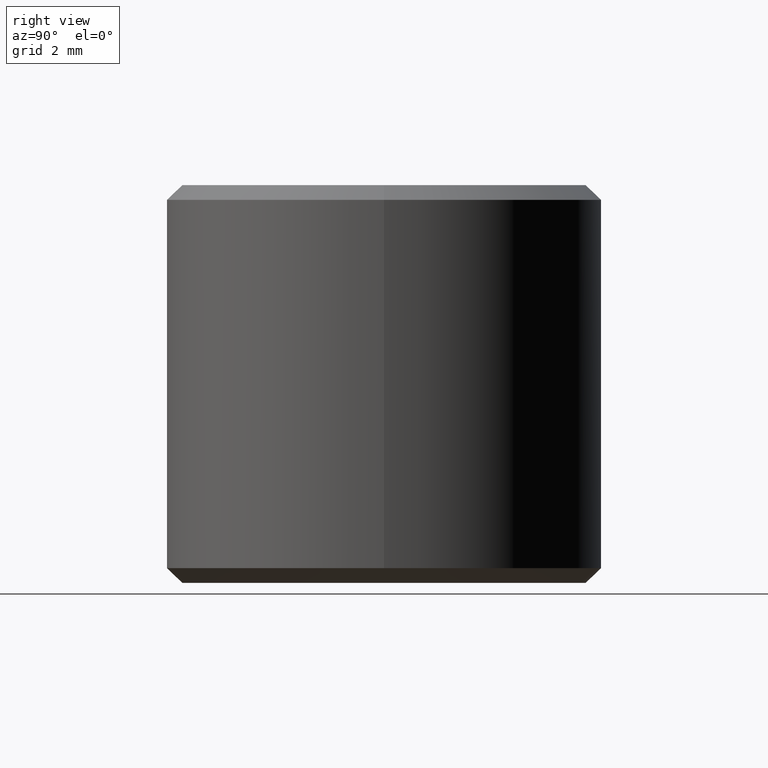
[diagram: clean part render]
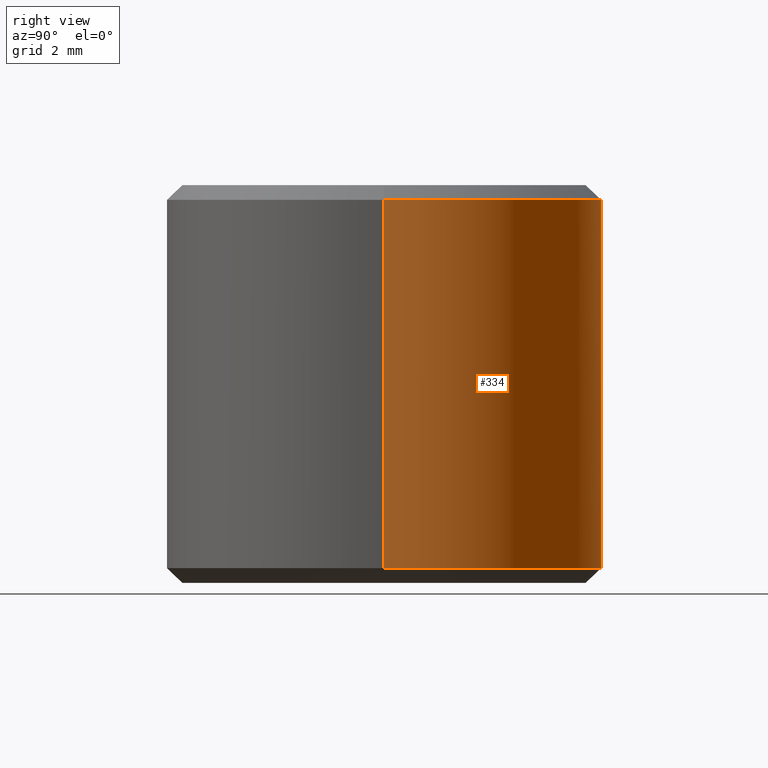
[diagram: same view with one face highlighted and labeled with its STEP entity id]
A machine part, right view. The second image highlights one B-rep face of the part: STEP entity #334.
In plain terms, the highlighted cylindrical surface (partial cylindrical patch) has radius 6 mm, axis along (-0, -0, 1).
Its self-contained STEP definition (entity closure, byte-faithful):
#10 = CARTESIAN_POINT ( 'NONE',  ( 5.999999999999958300, 0.1111111111113758500, 0.4074074074076027300 ) ) ;
#33 = CARTESIAN_POINT ( 'NONE',  ( -5.999999999999956500, 0.1111111111113765900, 10.59259259259270700 ) ) ;
#38 = FACE_OUTER_BOUND ( 'NONE', #296, .T. ) ;
#39 = VERTEX_POINT ( 'NONE', #10 ) ;
#51 = DIRECTION ( 'NONE',  ( -0.0000000000000000000, -0.0000000000000000000, 1.000000000000000000 ) ) ;
#80 = CARTESIAN_POINT ( 'NONE',  ( 5.999999999999956500, 0.1111111111113758500, 10.59259259259270700 ) ) ;
#106 = DIRECTION ( 'NONE',  ( 1.000000000000000000, 0.0000000000000000000, 0.0000000000000000000 ) ) ;
#108 = CARTESIAN_POINT ( 'NONE',  ( -5.999999999999957400, 0.1111111111113765900, 17.60149317175943700 ) ) ;
#109 = AXIS2_PLACEMENT_3D ( 'NONE', #238, #51, #106 ) ;
#110 = VECTOR ( 'NONE', #266, 1000.000000000000000 ) ;
#120 = CIRCLE ( 'NONE', #109, 5.999999999999956500 ) ;
#141 = AXIS2_PLACEMENT_3D ( 'NONE', #153, #261, #293 ) ;
#153 = CARTESIAN_POINT ( 'NONE',  ( 0.0000000000000000000, 0.1111111111113758500, 0.4074074074076027300 ) ) ;
#172 = ORIENTED_EDGE ( 'NONE', *, *, #268, .F. ) ;
#184 = LINE ( 'NONE', #108, #246 ) ;
#190 = LINE ( 'NONE', #318, #110 ) ;
#207 = ORIENTED_EDGE ( 'NONE', *, *, #300, .F. ) ;
#222 = DIRECTION ( 'NONE',  ( -0.0000000000000000000, -0.0000000000000000000, 1.000000000000000000 ) ) ;
#223 = AXIS2_PLACEMENT_3D ( 'NONE', #328, #224, #325 ) ;
#224 = DIRECTION ( 'NONE',  ( -0.0000000000000000000, -0.0000000000000000000, 1.000000000000000000 ) ) ;
#238 = CARTESIAN_POINT ( 'NONE',  ( 0.0000000000000000000, 0.1111111111113758500, 10.59259259259270700 ) ) ;
#239 = CYLINDRICAL_SURFACE ( 'NONE', #223, 5.999999999999957400 ) ;
#246 = VECTOR ( 'NONE', #222, 1000.000000000000000 ) ;
#261 = DIRECTION ( 'NONE',  ( -0.0000000000000000000, -0.0000000000000000000, 1.000000000000000000 ) ) ;
#263 = VERTEX_POINT ( 'NONE', #33 ) ;
#264 = CARTESIAN_POINT ( 'NONE',  ( -5.999999999999959100, 0.1111111111113765900, 0.4074074074076027300 ) ) ;
#266 = DIRECTION ( 'NONE',  ( -0.0000000000000000000, -0.0000000000000000000, 1.000000000000000000 ) ) ;
#268 = EDGE_CURVE ( 'NONE', #288, #263, #120, .T. ) ;
#270 = ORIENTED_EDGE ( 'NONE', *, *, #319, .T. ) ;
#276 = ORIENTED_EDGE ( 'NONE', *, *, #283, .T. ) ;
#283 = EDGE_CURVE ( 'NONE', #39, #286, #327, .T. ) ;
#286 = VERTEX_POINT ( 'NONE', #264 ) ;
#288 = VERTEX_POINT ( 'NONE', #80 ) ;
#293 = DIRECTION ( 'NONE',  ( 1.000000000000000000, 0.0000000000000000000, 0.0000000000000000000 ) ) ;
#296 = EDGE_LOOP ( 'NONE', ( #276, #270, #172, #207 ) ) ;
#300 = EDGE_CURVE ( 'NONE', #39, #288, #190, .T. ) ;
#318 = CARTESIAN_POINT ( 'NONE',  ( 5.999999999999957400, 0.1111111111113758500, 17.60149317175943700 ) ) ;
#319 = EDGE_CURVE ( 'NONE', #286, #263, #184, .T. ) ;
#325 = DIRECTION ( 'NONE',  ( 1.000000000000000000, 0.0000000000000000000, 0.0000000000000000000 ) ) ;
#327 = CIRCLE ( 'NONE', #141, 5.999999999999958300 ) ;
#328 = CARTESIAN_POINT ( 'NONE',  ( 0.0000000000000000000, 0.1111111111113758500, 17.60149317175943700 ) ) ;
#334 = ADVANCED_FACE ( 'NONE', ( #38 ), #239, .T. ) ;